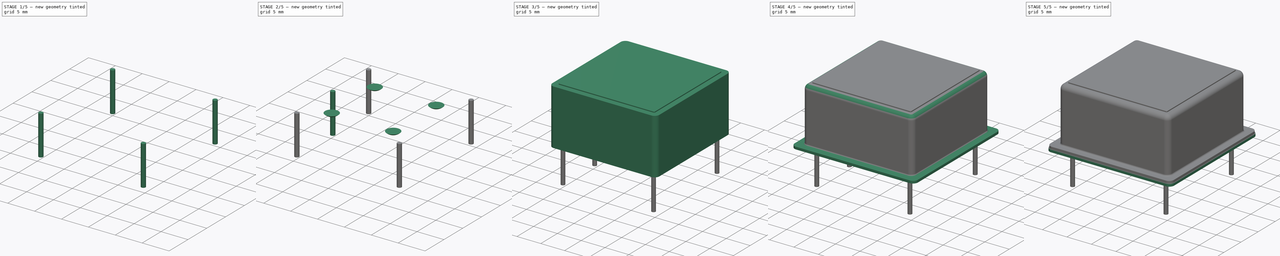
[diagram: build sequence overview — one tinted view per stage of 5, left to right]
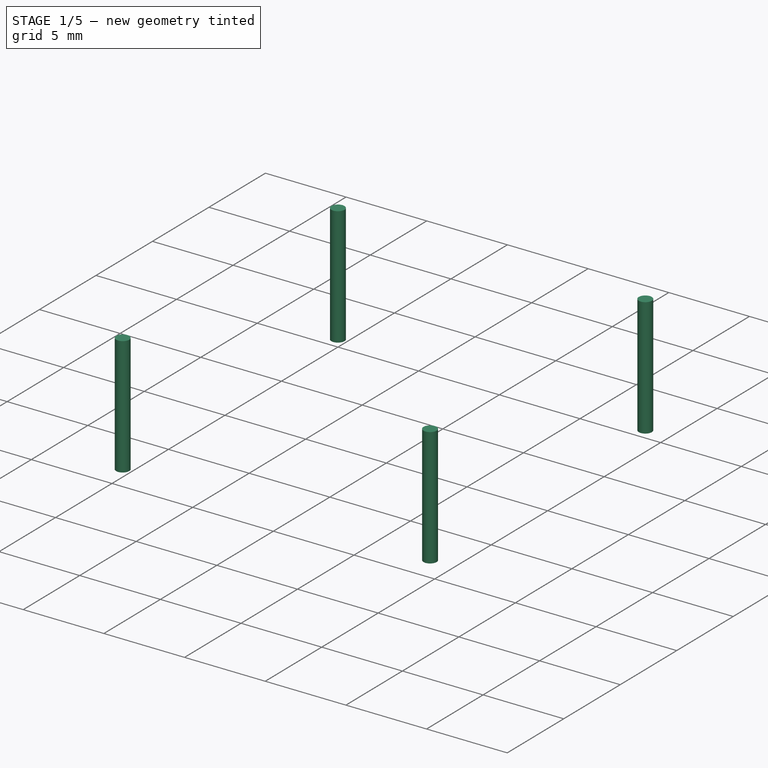
[diagram: stage 1 of 5 — iso view after this stage's code; geometry added in this stage tinted green]
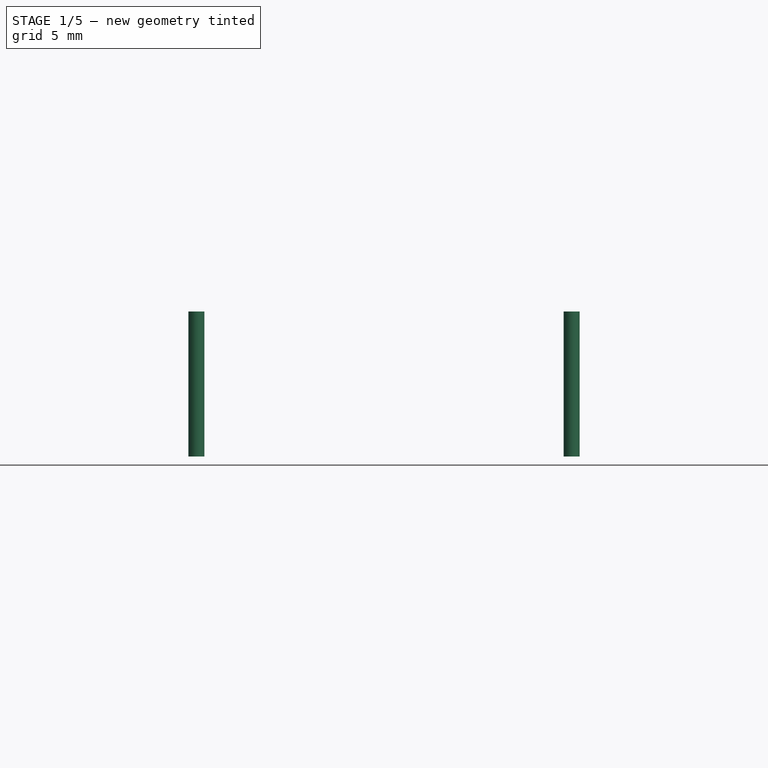
[diagram: stage 1 of 5 — front view after this stage's code; geometry added in this stage tinted green]
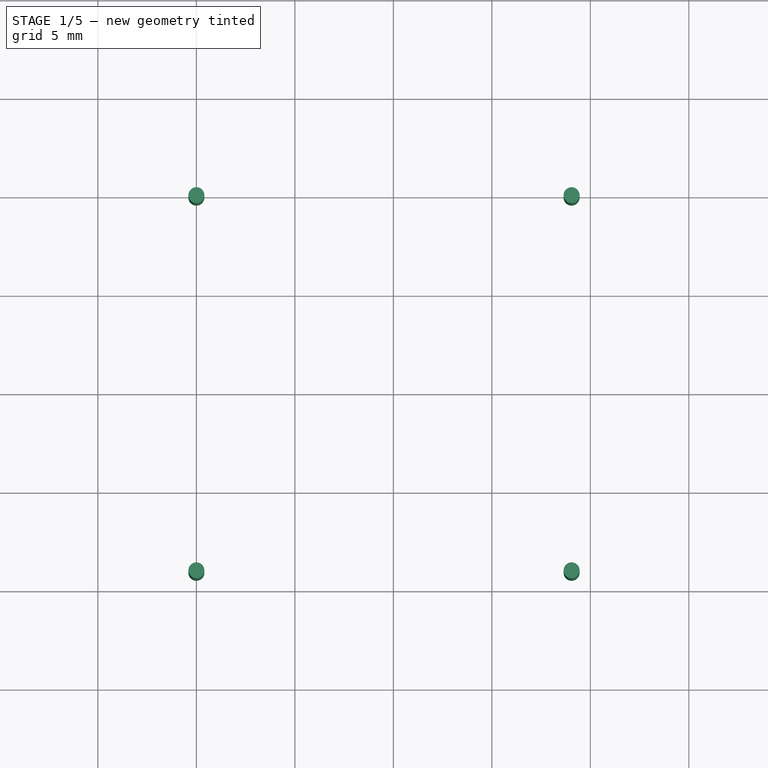
[diagram: stage 1 of 5 — top view after this stage's code; geometry added in this stage tinted green]
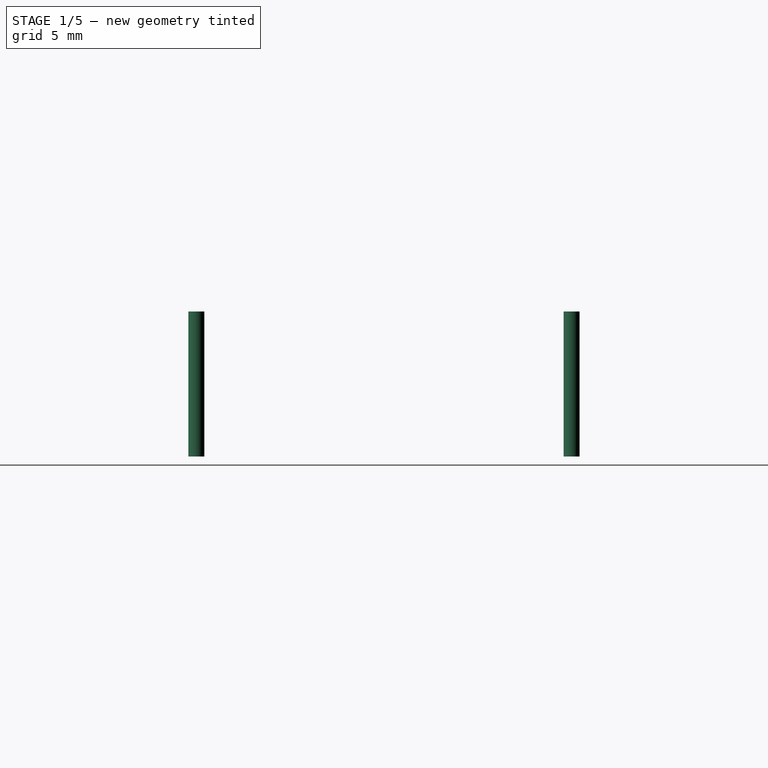
[diagram: stage 1 of 5 — right view after this stage's code; geometry added in this stage tinted green]
FCSTD DOCUMENT  (FreeCAD 1.0R38641 +468 (Git))
Label: cx205-1
License: All rights reserved
objects: Sketcher::SketchObject×7, PartDesign::Pad×6, PartDesign::Body×6, PartDesign::Plane×3, PartDesign::Line×3, PartDesign::Fillet×2, Part::FeaturePython×2, Spreadsheet::Sheet×1, PartDesign::Pocket×1, PartDesign::Thickness×1, PartDesign::Revolution×1, PartDesign::FeatureBase×1, Part::Compound×1
note: 64 computed .brp shape members not serialized (recipe doc carries the construction recipe); baked Part::Feature solids carry a one-line shape summary decoded from their .brp

FEATURE [Sketcher::SketchObject] Sketch006
  ArcFitTolerance = 0
  AttachmentSupport = -> [XY_Plane004]
  FullyConstrained = true
  MakeInternals = false
  MapMode = 5
  sketch-geometry (1):
    g0: Circle CenterX=0 CenterY=0 CenterZ=0 NormalX=0 NormalY=0 NormalZ=1 AngleXU=0 Radius=0.405
  constraints (2):
    c: Coincident(g0,g-1)
    c: Radius(g0) = 0.405
FEATURE [PartDesign::Pad] Pad005
  AllowMultiFace = false
  Direction = (0,0,1)
  Length = 1.01
  Length2 = 6.35
  Profile = -> Sketch006
  Suppressed = false
  Type = 4
FEATURE [PartDesign::Body] Body004
  AllowCompound = false
  Group = -> [Sketch006,Pad005]
  Origin = -> Origin004
  Tip = -> Pad005
FEATURE [PartDesign::FeatureBase] Clone
  BaseFeature = -> Body004
  Suppressed = false
FEATURE [PartDesign::Body] Body005
  AllowCompound = false
  Group = -> [Clone]
  Origin = -> Origin005
  Placement = pos=(0,-9.52,0) rot=(0,0,1;0rad)
  Tip = -> Clone
FEATURE [Part::FeaturePython] Array001  # Draft array (typed FeaturePython)
  Angle = 360
  ArrayType = 0
  Axis = (0,0,1)
  Base = -> Body004
  Center = (0,0,0)
  Count = 4
  Fuse = false
  IntervalAxis = (0,0,0)
  IntervalX = (19.05,0,0)
  IntervalY = (0,-19.05,0)
  IntervalZ = (0,0,100)
  NumberCircles = 3
  NumberPolar = 5
  NumberX = 2
  NumberY = 2
  NumberZ = 1
  RadialDistance = 50
  Symmetry = 1
  TangentialDistance = 25
  expr: .IntervalX.x = <<Master>>.pin_corner
  expr: .IntervalY.y = -<<Master>>.pin_corner
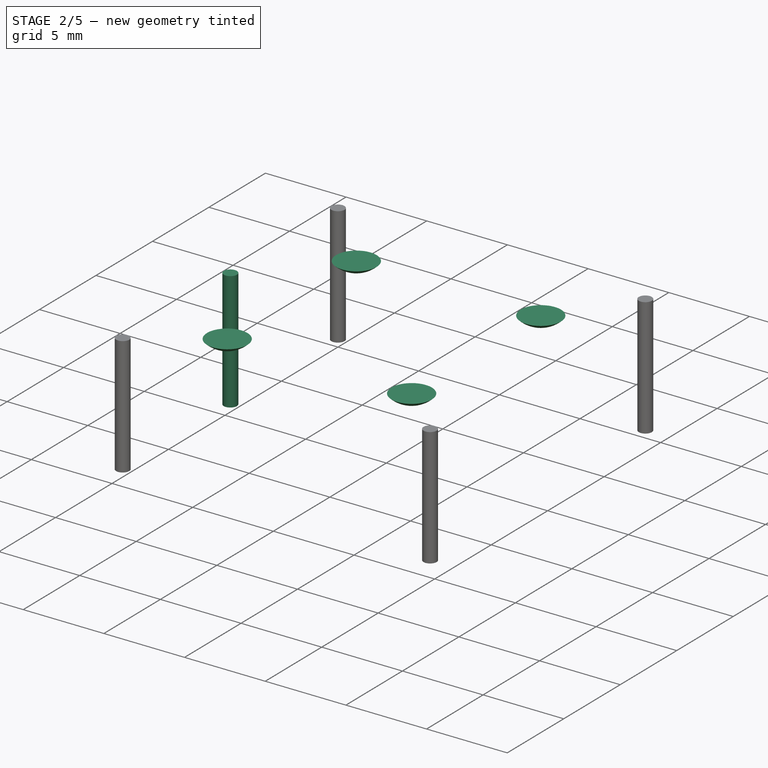
[diagram: stage 2 of 5 — iso view after this stage's code; geometry added in this stage tinted green]
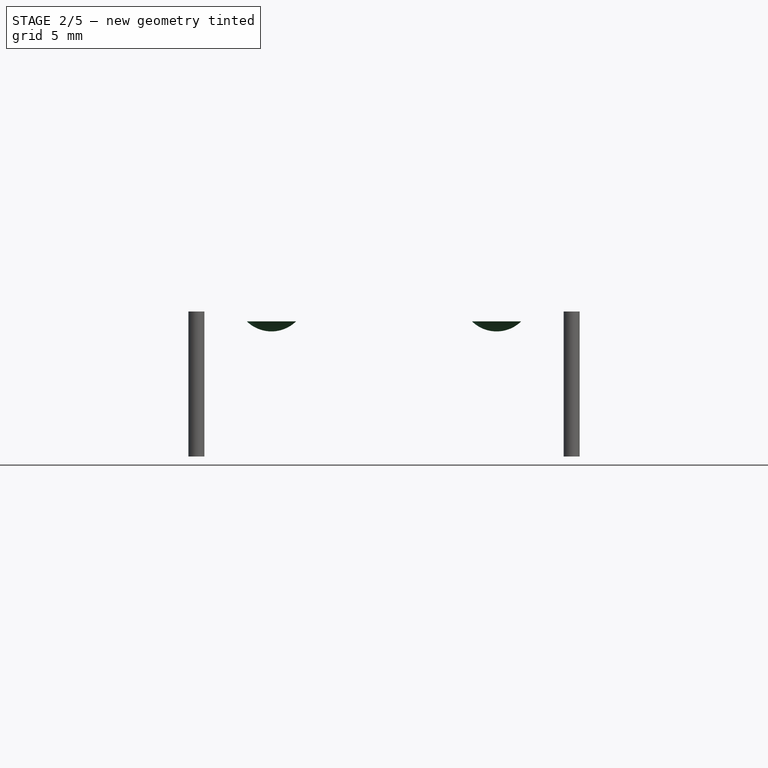
[diagram: stage 2 of 5 — front view after this stage's code; geometry added in this stage tinted green]
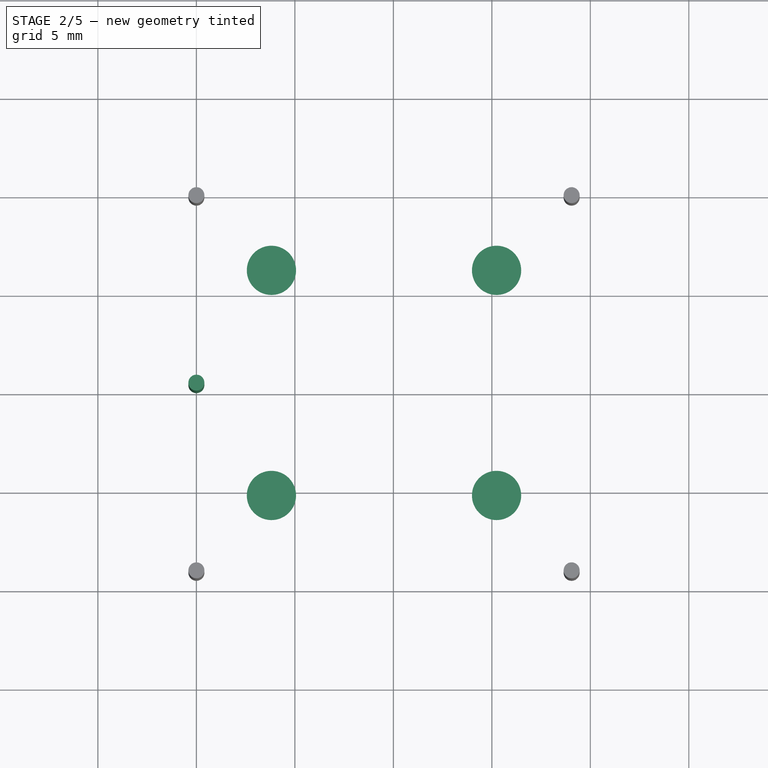
[diagram: stage 2 of 5 — top view after this stage's code; geometry added in this stage tinted green]
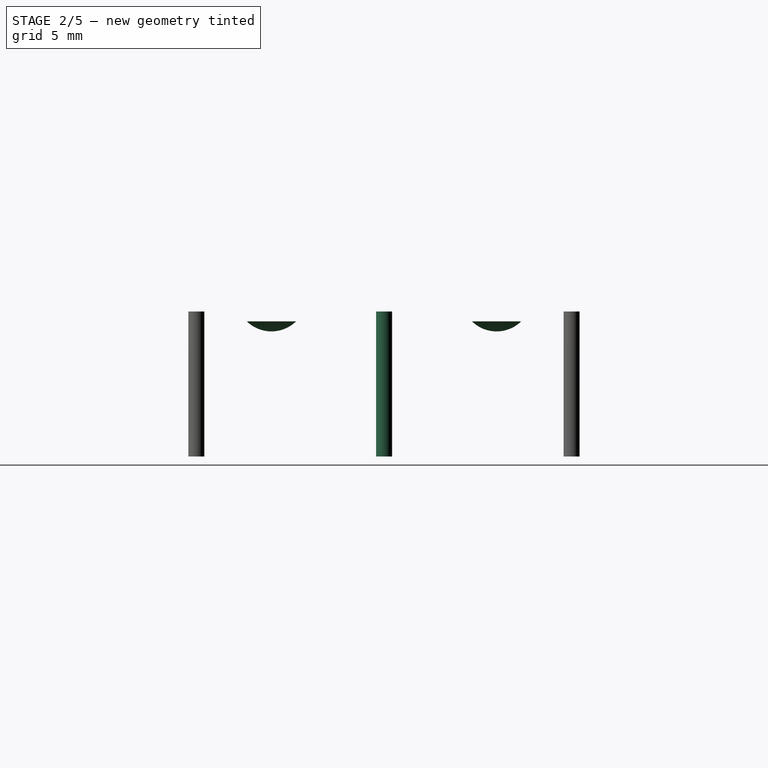
[diagram: stage 2 of 5 — right view after this stage's code; geometry added in this stage tinted green]
FEATURE [PartDesign::Body] Body002  label="Label"
  AllowCompound = false
  Group = -> [DatumLine002,DatumPlane002,Sketch004,Pad004]
  Origin = -> Origin002
  Tip = -> Pad004
FEATURE [Sketcher::SketchObject] Sketch005
  ArcFitTolerance = 0
  AttachmentSupport = -> [XZ_Plane003]
  FullyConstrained = true
  MakeInternals = false
  MapMode = 5
  Placement = pos=(0,0,0) rot=(1,0,0;1.5708rad)
  sketch-geometry (3):
    g0: LineSegment StartX=0 StartY=0.51 StartZ=0 EndX=1.25 EndY=0.51 EndZ=0
    g1: LineSegment StartX=0 StartY=0.51 StartZ=0 EndX=0 EndY=0 EndZ=0
    g2: ArcOfCircle CenterX=0 CenterY=1.78686 CenterZ=0 NormalX=0 NormalY=0 NormalZ=1 AngleXU=0 Radius=1.78686 StartAngle=4.71239 EndAngle=5.48716
  constraints (9):
    c: Horizontal(g0)
    c: Vertical(g1)
    c: Coincident(g2,g0)
    c: Coincident(g2,g1)
    c: Coincident(g1,g-1)
    c: Coincident(g1,g0)
    c: DistanceY(g1,g1) = 0.51
    c: DistanceX(g0,g0) = 1.25
    c: Perpendicular(g2,g1)
FEATURE [PartDesign::Revolution] Revolution
  AllowMultiFace = false
  Angle = 360
  Angle2 = 60
  Axis = (0,2e-16,1)
  Base = (0,0,0)
  Placement = pos=(0,0,0) rot=(1,0,0;1.5708rad)
  Profile = -> Sketch005
  ReferenceAxis = -> Sketch005 [V_Axis]
  Reversed = true
  Suppressed = false
  Type = 0
FEATURE [PartDesign::Body] Body003
  AllowCompound = false
  Group = -> [Sketch005,Revolution]
  Origin = -> Origin003
  Tip = -> Revolution
FEATURE [Part::FeaturePython] Array  label="Standoff"  # Draft array (typed FeaturePython)
  Angle = 360
  ArrayType = 0
  Axis = (0,0,1)
  Base = -> Body003
  Center = (0,0,0)
  Count = 4
  Fuse = false
  IntervalAxis = (0,0,0)
  IntervalX = (11.43,0,0)
  IntervalY = (0,-11.43,0)
  IntervalZ = (0,0,100)
  NumberCircles = 3
  NumberPolar = 5
  NumberX = 2
  NumberY = 2
  NumberZ = 1
  Placement = pos=(3.81,-3.81,0) rot=(0,0,1;0rad)
  RadialDistance = 50
  Symmetry = 1
  TangentialDistance = 25
  expr: .IntervalX.x = <<Master>>.standoff_sq
  expr: .IntervalY.y = -<<Master>>.standoff_sq
  expr: .Placement.Base.x = <<Master>>.standoff_x
  expr: .Placement.Base.y = -<<Master>>.standoff_y
FEATURE [Part::Compound] Compound  label="Pins"
  Links = -> [Array001,Body005]
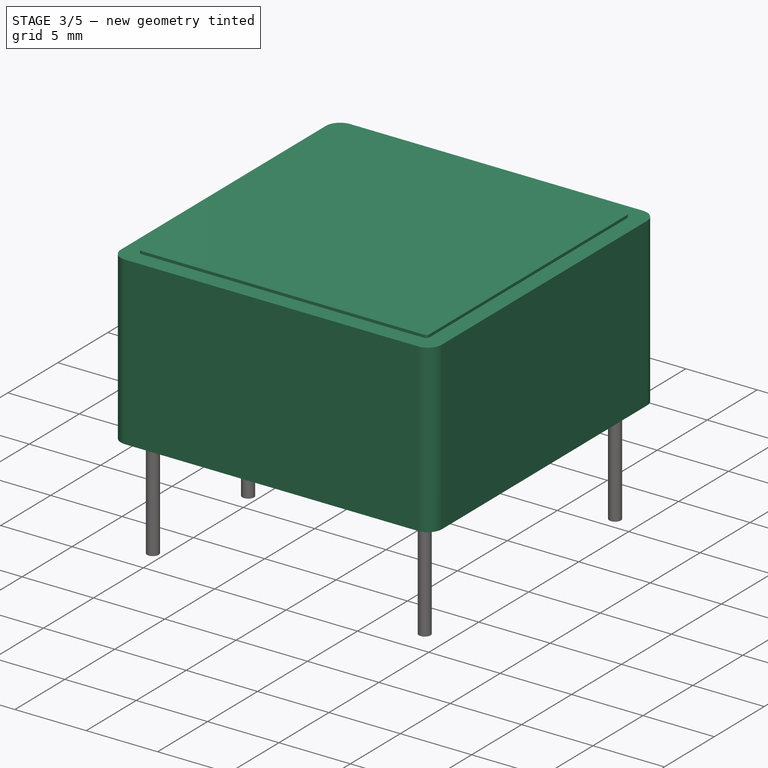
[diagram: stage 3 of 5 — iso view after this stage's code; geometry added in this stage tinted green]
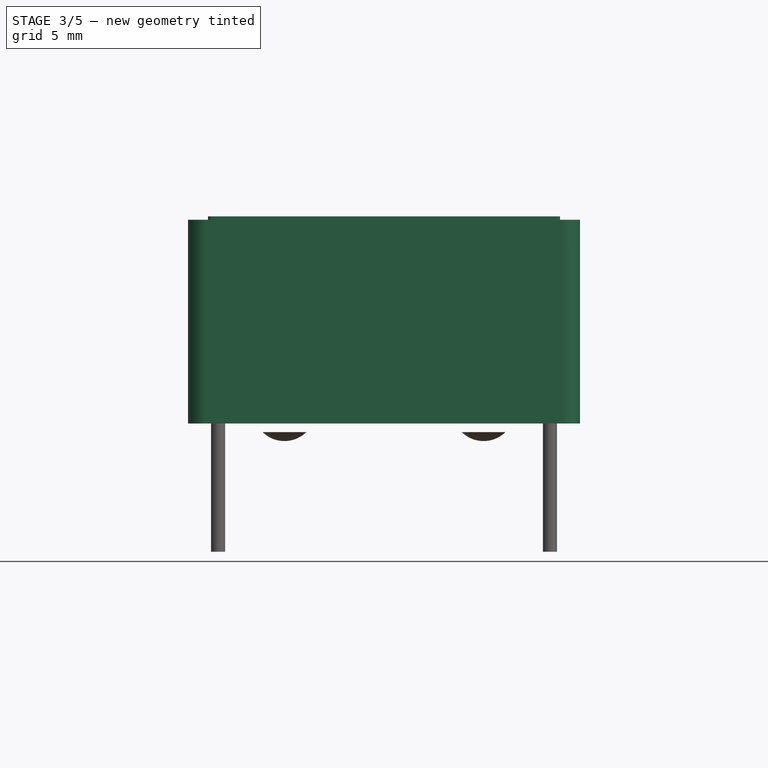
[diagram: stage 3 of 5 — front view after this stage's code; geometry added in this stage tinted green]
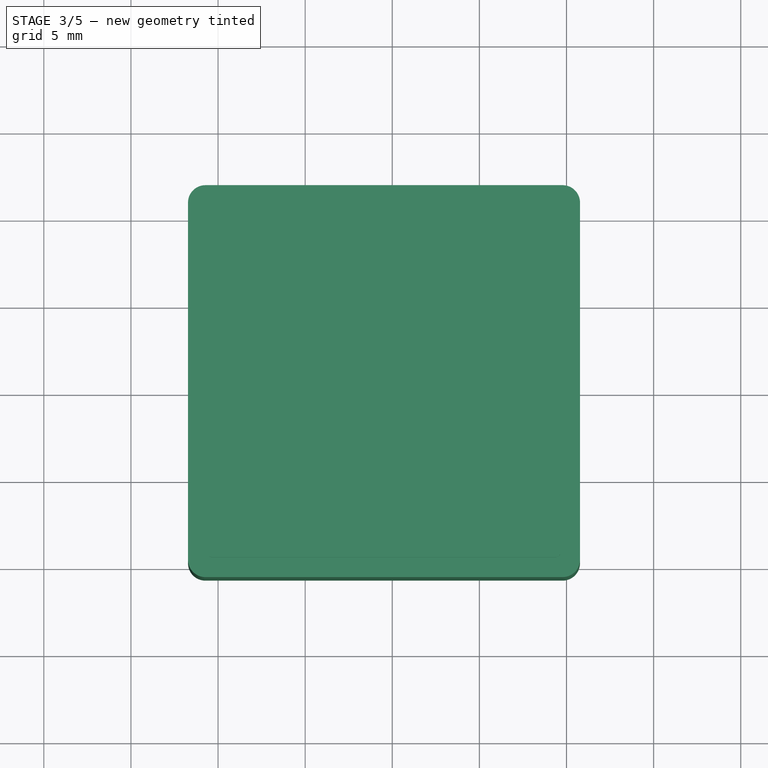
[diagram: stage 3 of 5 — top view after this stage's code; geometry added in this stage tinted green]
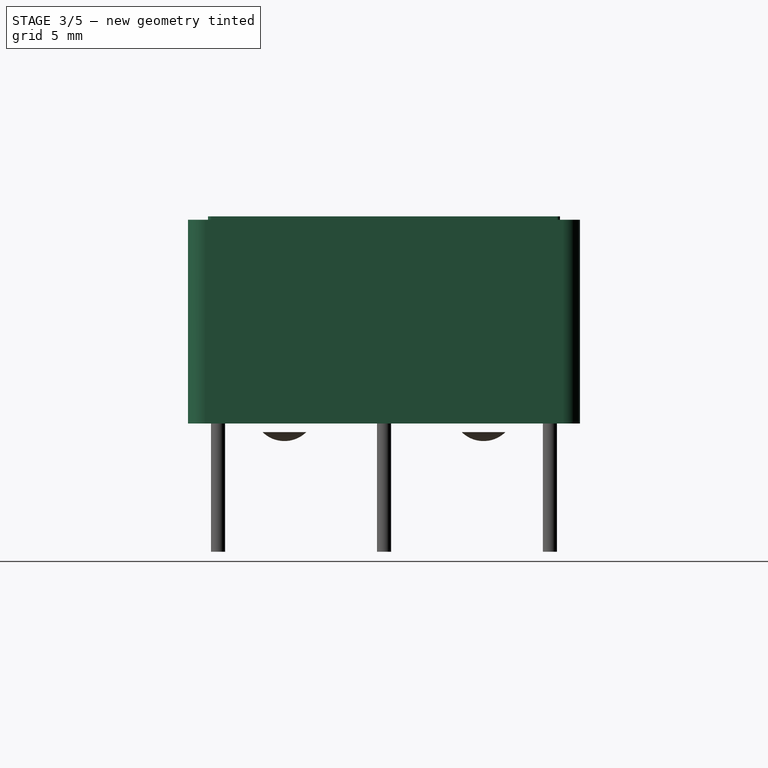
[diagram: stage 3 of 5 — right view after this stage's code; geometry added in this stage tinted green]
FEATURE [PartDesign::Body] Body  label="Base"
  AllowCompound = false
  Group = -> [DatumLine,DatumPlane,Sketch,Pad,Sketch001,Sketch002,Pad001,Pocket]
  Origin = -> Origin
  Tip = -> Pocket
FEATURE [PartDesign::Plane] DatumPlane001
  AttachmentOffset = pos=(0,0,1.01) rot=(0,0,1;0rad)
  AttachmentSupport = -> [XY_Plane001]
  Length = 60
  MapMode = 5
  Placement = pos=(0,0,1.01) rot=(0,0,1;0rad)
  ResizeMode = 0
  Width = 60
  expr: .AttachmentOffset.Base.z = <<Master>>.cover_off
FEATURE [PartDesign::Line] DatumLine001
  AttacherType = Attacher::AttachEngineLine
  AttachmentOffset = pos=(9.525,-9.525,0) rot=(0,0,1;0rad)
  AttachmentSupport = -> [Z_Axis001]
  Length = 20
  MapMode = 29
  Placement = pos=(9.525,-9.525,0) rot=(0,0,1;0rad)
  ResizeMode = 0
  expr: .AttachmentOffset.Base.x = <<Master>>.center_x
  expr: .AttachmentOffset.Base.y = -<<Master>>.center_y
FEATURE [Sketcher::SketchObject] Sketch003
  ArcFitTolerance = 0
  AttachmentSupport = -> [DatumPlane001]
  ExternalGeometry = -> [DatumLine001]
  FullyConstrained = true
  MakeInternals = false
  MapMode = 5
  Placement = pos=(0,0,1.01) rot=(0,0,1;0rad)
  expr: Constraints[29] = <<Master>>.cover_sq
  sketch-geometry (23):
    g0: LineSegment StartX=-2.075 StartY=3.075 StartZ=0 EndX=21.125 EndY=3.075 EndZ=0
    g1: LineSegment StartX=22.125 StartY=2.075 StartZ=0 EndX=22.125 EndY=-21.125 EndZ=0
    g2: LineSegment StartX=21.125 StartY=-22.125 StartZ=0 EndX=-2.075 EndY=-22.125 EndZ=0
    g3: LineSegment StartX=-3.075 StartY=-21.125 StartZ=0 EndX=-3.075 EndY=2.075 EndZ=0
    g4: LineSegment StartX=-1.725 StartY=0.725 StartZ=0 EndX=-1.725 EndY=-19.775 EndZ=0
    g5: LineSegment StartX=-0.725 StartY=-20.775 StartZ=0 EndX=19.775 EndY=-20.775 EndZ=0
    g6: LineSegment StartX=20.775 StartY=-19.775 StartZ=0 EndX=20.775 EndY=0.725 EndZ=0
    g7: LineSegment StartX=19.775 StartY=1.725 StartZ=0 EndX=-0.725 EndY=1.725 EndZ=0
    g8: ArcOfCircle CenterX=-0.725 CenterY=0.725 CenterZ=0 NormalX=0 NormalY=0 NormalZ=1 AngleXU=0 Radius=1 StartAngle=1.5708 EndAngle=3.14159
    g9: ArcOfCircle CenterX=-0.725 CenterY=-19.775 CenterZ=0 NormalX=0 NormalY=0 NormalZ=1 AngleXU=0 Radius=1 StartAngle=3.14159 EndAngle=4.71239
    g10: ArcOfCircle CenterX=19.775 CenterY=-19.775 CenterZ=0 NormalX=0 NormalY=0 NormalZ=1 AngleXU=0 Radius=1 StartAngle=4.71239 EndAngle=6.28319
    g11: ArcOfCircle CenterX=19.775 CenterY=0.725 CenterZ=0 NormalX=0 NormalY=0 NormalZ=1 AngleXU=0 Radius=1 StartAngle=0 EndAngle=1.5708
    g12: GeomPoint [constr] X=20.775 Y=-20.775 Z=0
    g13: GeomPoint [constr] X=20.775 Y=1.725 Z=0
    g14: GeomPoint [constr] X=-1.725 Y=-20.775 Z=0
    g15: ArcOfCircle CenterX=-2.075 CenterY=2.075 CenterZ=0 NormalX=0 NormalY=0 NormalZ=1 AngleXU=0 Radius=1 StartAngle=1.5708 EndAngle=3.14159
    g16: GeomPoint [constr] X=-3.075 Y=3.075 Z=0
    g17: ArcOfCircle CenterX=-2.075 CenterY=-21.125 CenterZ=0 NormalX=0 NormalY=0 NormalZ=1 AngleXU=0 Radius=1 StartAngle=3.14159 EndAngle=4.71239
    g18: GeomPoint [constr] X=-3.075 Y=-22.125 Z=0
    g19: ArcOfCircle CenterX=21.125 CenterY=-21.125 CenterZ=0 NormalX=0 NormalY=0 NormalZ=1 AngleXU=0 Radius=1 StartAngle=4.71239 EndAngle=6.28319
    g20: GeomPoint [constr] X=22.125 Y=-22.125 Z=0
    g21: ArcOfCircle CenterX=21.125 CenterY=2.075 CenterZ=0 NormalX=0 NormalY=0 NormalZ=1 AngleXU=0 Radius=1 StartAngle=-3.55e-14 EndAngle=1.5708
    g22: GeomPoint [constr] X=22.125 Y=3.075 Z=0
  constraints (52):
    c: Horizontal(g2)
    c: Vertical(g3)
    c: DistanceY(g20,g22) = 25.2
    c: Horizontal(g0)
    c: Vertical(g1)
    c: Tangent(g4,g8) = -1.5708
    c: Tangent(g4,g9) = -1.5708
    c: Tangent(g5,g9) = -1.5708
    c: Tangent(g5,g10) = -1.5708
    c: Tangent(g6,g10) = -1.5708
    c: Tangent(g6,g11) = -1.5708
    c: Tangent(g7,g11) = -1.5708
    c: Tangent(g7,g8) = -1.5708
    c: Vertical(g4)
    c: Vertical(g6)
    c: Horizontal(g5)
    c: Horizontal(g7)
    c: Equal(g8,g9)
    c: Equal(g9,g10)
    c: Equal(g10,g11)
    c: PointOnObject(g12,g5)
    c: PointOnObject(g12,g6)
    c: Radius(g8) = 1
    c: Symmetric(g22,g18,g-3)
    c: PointOnObject(g13,g7)
    c: PointOnObject(g13,g6)
    c: Equal(g6,g7)
    c: PointOnObject(g14,g5)
    c: PointOnObject(g14,g4)
    c: DistanceX(g14,g12) = 22.5
    c: Symmetric(g14,g13,g-3)
    c: PointOnObject(g16,g0)
    c: PointOnObject(g16,g3)
    c: Tangent(g0,g15) = 1.5708
    c: Tangent(g3,g15) = 1.5708
    c: PointOnObject(g18,g3)
    c: PointOnObject(g18,g2)
    c: Tangent(g3,g17) = 1.5708
    c: Tangent(g2,g17) = 1.5708
    c: PointOnObject(g20,g2)
    c: PointOnObject(g20,g1)
    c: Tangent(g2,g19) = 1.5708
    c: Tangent(g1,g19) = 1.5708
    c: PointOnObject(g22,g0)
    c: PointOnObject(g22,g1)
    c: Tangent(g0,g21) = 1.5708
    c: Tangent(g1,g21) = 1.5708
    c: Equal(g21,g15)
    c: Equal(g15,g17)
    c: Equal(g17,g19)
    c: Radius(g15) = 1
    c: Equal(g1,g0)
FEATURE [PartDesign::Pad] Pad002
  Direction = (0,0,1)
  Length = 11.69
  Length2 = 10
  Placement = pos=(0,0,1.01) rot=(0,0,1;0rad)
  Profile = -> Sketch003 [Edge9,Edge16,Edge15,Edge14,Edge13,Edge12,Edge11,Edge10]
  ReferenceAxis = -> Sketch003 [N_Axis]
  Suppressed = false
  Type = 0
  expr: Length = <<Master>>.cover_h
FEATURE [PartDesign::Thickness] Thickness
  Base = -> Pad002 [Face9]
  BaseFeature = -> Pad002
  Intersection = false
  Join = 0
  Mode = 0
  Reversed = true
  SupportTransform = false
  Suppressed = false
  Value = 0.5
  expr: Value = <<Master>>.thick
FEATURE [PartDesign::Body] Body001  label="Cover"
  AllowCompound = false
  Group = -> [DatumLine001,DatumPlane001,Sketch003,Pad002,Thickness,Pad003,Fillet,Fillet001]
  Origin = -> Origin001
  Tip = -> Fillet001
FEATURE [PartDesign::Plane] DatumPlane002
  AttachmentOffset = pos=(0,0,12.7) rot=(0,0,1;0rad)
  AttachmentSupport = -> [XY_Plane002]
  Length = 60
  MapMode = 5
  Placement = pos=(0,0,12.7) rot=(0,0,1;0rad)
  ResizeMode = 0
  Width = 60
  expr: .AttachmentOffset.Base.z = <<Master>>.height
FEATURE [PartDesign::Line] DatumLine002
  AttacherType = Attacher::AttachEngineLine
  AttachmentOffset = pos=(9.525,-9.525,0) rot=(0,0,1;0rad)
  AttachmentSupport = -> [Z_Axis002]
  Length = 20
  MapMode = 29
  Placement = pos=(9.525,-9.525,0) rot=(0,0,1;0rad)
  ResizeMode = 0
  expr: .AttachmentOffset.Base.x = <<Master>>.center_x
  expr: .AttachmentOffset.Base.y = -<<Master>>.center_y
FEATURE [Sketcher::SketchObject] Sketch004
  ArcFitTolerance = 0
  AttachmentSupport = -> [DatumPlane002]
  ExternalGeometry = -> [DatumLine002]
  FullyConstrained = true
  MakeInternals = false
  MapMode = 5
  Placement = pos=(0,0,12.7) rot=(0,0,1;0rad)
  sketch-geometry (12):
    g0: LineSegment StartX=-0.375 StartY=0.575 StartZ=0 EndX=19.425 EndY=0.575 EndZ=0
    g1: LineSegment StartX=19.625 StartY=0.375 StartZ=0 EndX=19.625 EndY=-19.425 EndZ=0
    g2: LineSegment StartX=19.425 StartY=-19.625 StartZ=0 EndX=-0.375 EndY=-19.625 EndZ=0
    g3: LineSegment StartX=-0.575 StartY=-19.425 StartZ=0 EndX=-0.575 EndY=0.375 EndZ=0
    g4: ArcOfCircle CenterX=-0.375 CenterY=0.375 CenterZ=0 NormalX=0 NormalY=0 NormalZ=1 AngleXU=0 Radius=0.2 StartAngle=1.5708 EndAngle=3.14159
    g5: GeomPoint [constr] X=-0.575 Y=0.575 Z=0
    g6: ArcOfCircle CenterX=19.425 CenterY=0.375 CenterZ=0 NormalX=0 NormalY=0 NormalZ=1 AngleXU=0 Radius=0.2 StartAngle=-8.9e-15 EndAngle=1.5708
    g7: GeomPoint [constr] X=19.625 Y=0.575 Z=0
    g8: ArcOfCircle CenterX=19.425 CenterY=-19.425 CenterZ=0 NormalX=0 NormalY=0 NormalZ=1 AngleXU=0 Radius=0.2 StartAngle=4.71239 EndAngle=6.28319
    g9: GeomPoint [constr] X=19.625 Y=-19.625 Z=0
    g10: ArcOfCircle CenterX=-0.375 CenterY=-19.425 CenterZ=0 NormalX=0 NormalY=0 NormalZ=1 AngleXU=0 Radius=0.2 StartAngle=3.14159 EndAngle=4.71239
    g11: GeomPoint [constr] X=-0.575 Y=-19.625 Z=0
  constraints (27):
    c: Horizontal(g2)
    c: Vertical(g3)
    c: DistanceY(g9,g7) = 20.2
    c: Horizontal(g0)
    c: Vertical(g1)
    c: Symmetric(g7,g11,g-3)
    c: PointOnObject(g5,g0)
    c: PointOnObject(g5,g3)
    c: Tangent(g0,g4) = 1.5708
    c: Tangent(g3,g4) = 1.5708
    c: PointOnObject(g7,g1)
    c: PointOnObject(g7,g0)
    c: Tangent(g1,g6) = 1.5708
    c: Tangent(g0,g6) = 1.5708
    c: PointOnObject(g9,g2)
    c: PointOnObject(g9,g1)
    c: Tangent(g2,g8) = 1.5708
    c: Tangent(g1,g8) = 1.5708
    c: PointOnObject(g11,g3)
    c: PointOnObject(g11,g2)
    c: Tangent(g3,g10) = 1.5708
    c: Tangent(g2,g10) = 1.5708
    c: Equal(g0,g1)
    c: Equal(g4,g6)
    c: Equal(g6,g8)
    c: Equal(g8,g10)
    c: Radius(g6) = 0.2
FEATURE [PartDesign::Pad] Pad004
  AllowMultiFace = false
  Direction = (0,0,1)
  Length = 0.2
  Length2 = 100
  Placement = pos=(0,0,12.7) rot=(0,0,1;0rad)
  Profile = -> Sketch004
  Suppressed = false
  Type = 0
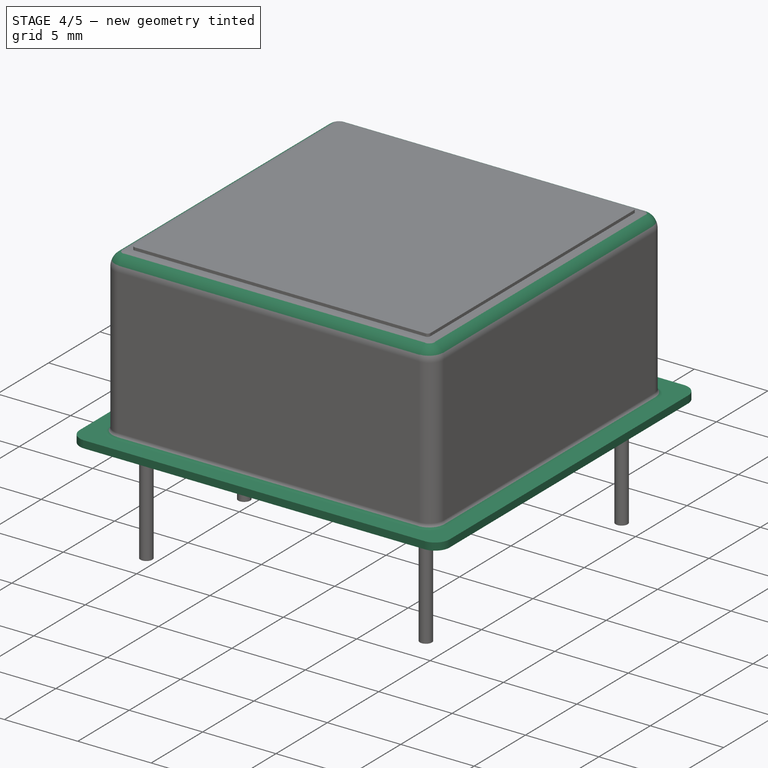
[diagram: stage 4 of 5 — iso view after this stage's code; geometry added in this stage tinted green]
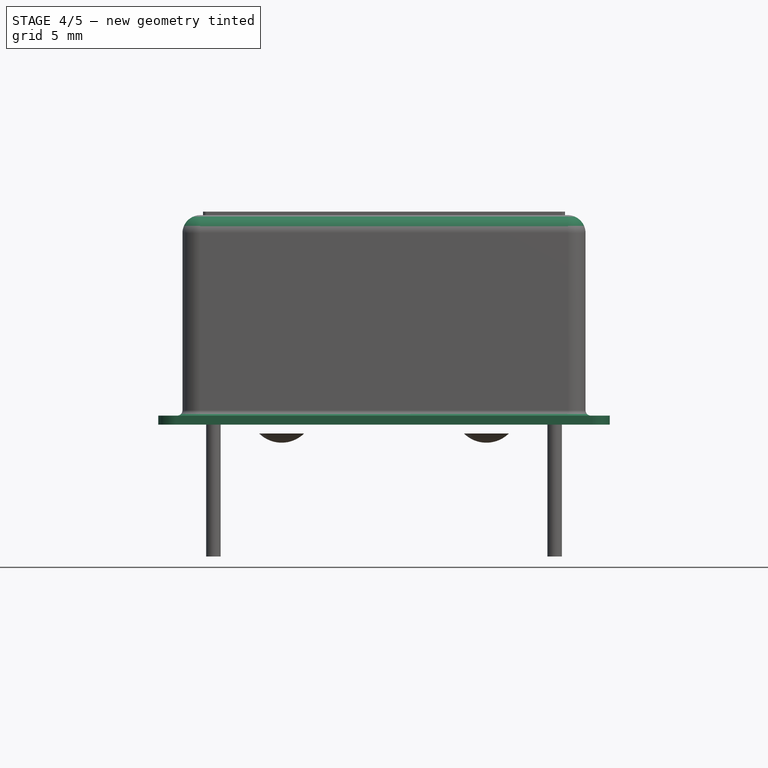
[diagram: stage 4 of 5 — front view after this stage's code; geometry added in this stage tinted green]
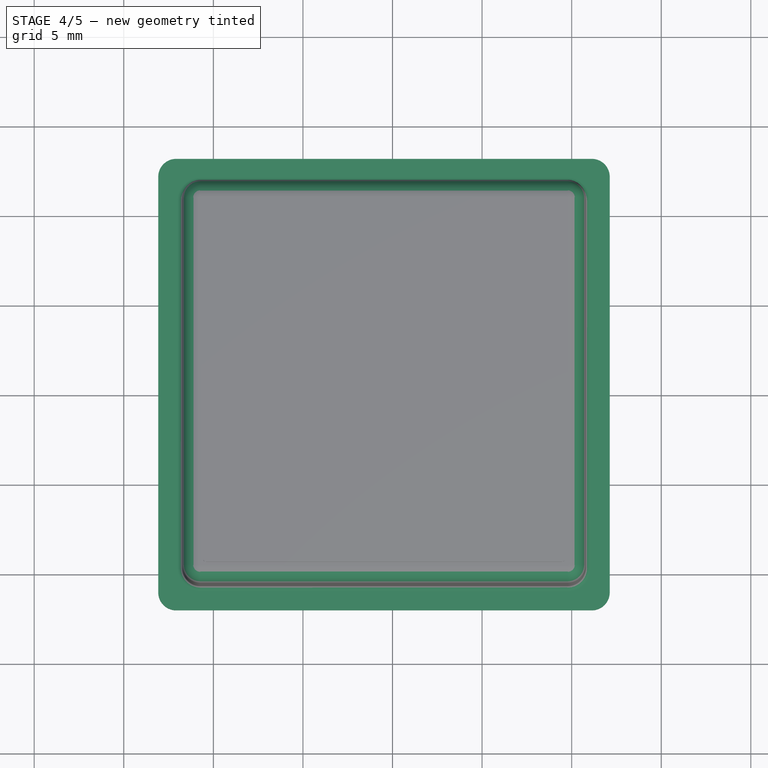
[diagram: stage 4 of 5 — top view after this stage's code; geometry added in this stage tinted green]
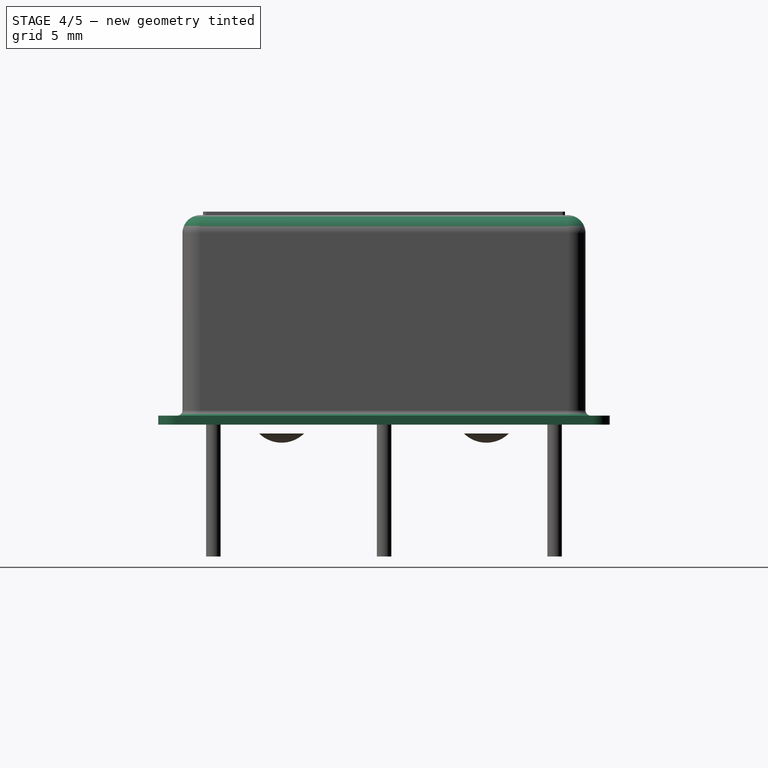
[diagram: stage 4 of 5 — right view after this stage's code; geometry added in this stage tinted green]
FEATURE [PartDesign::Pad] Pad003
  BaseFeature = -> Thickness
  Direction = (0,0,1)
  Length = 0.5
  Length2 = 10
  Profile = -> Sketch003
  ReferenceAxis = -> Sketch003 [N_Axis]
  Refine = true
  Suppressed = false
  Type = 0
  expr: Length = <<Master>>.thick
FEATURE [PartDesign::Fillet] Fillet
  Base = -> Pad003 [Edge22]
  BaseFeature = -> Pad003
  Radius = 1
  SupportTransform = false
  Suppressed = false
  UseAllEdges = false
FEATURE [PartDesign::Fillet] Fillet001
  Base = -> Fillet [Edge19]
  BaseFeature = -> Fillet
  Radius = 0.3
  SupportTransform = false
  Suppressed = false
  UseAllEdges = false
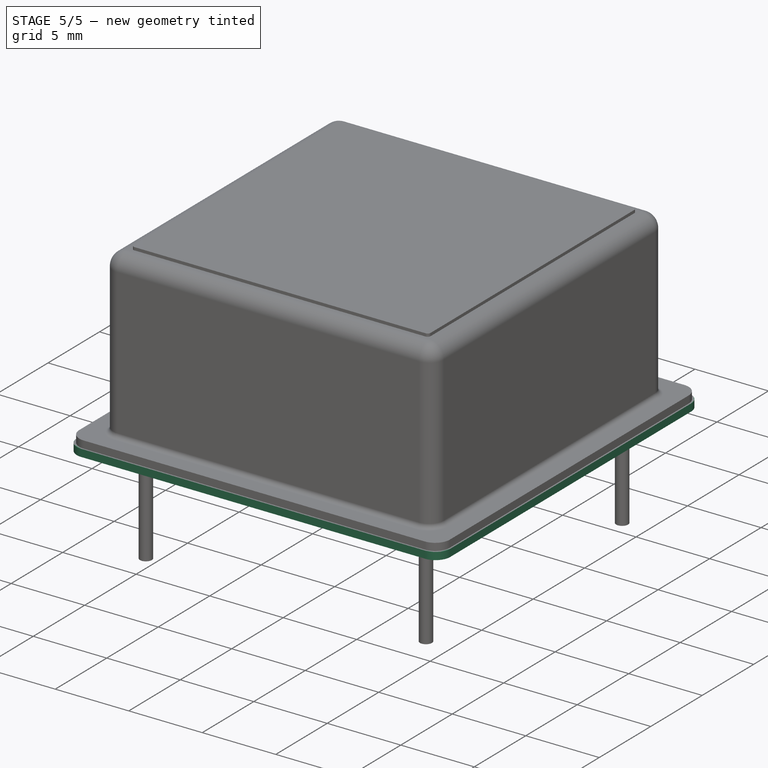
[diagram: stage 5 of 5 — iso view after this stage's code; geometry added in this stage tinted green]
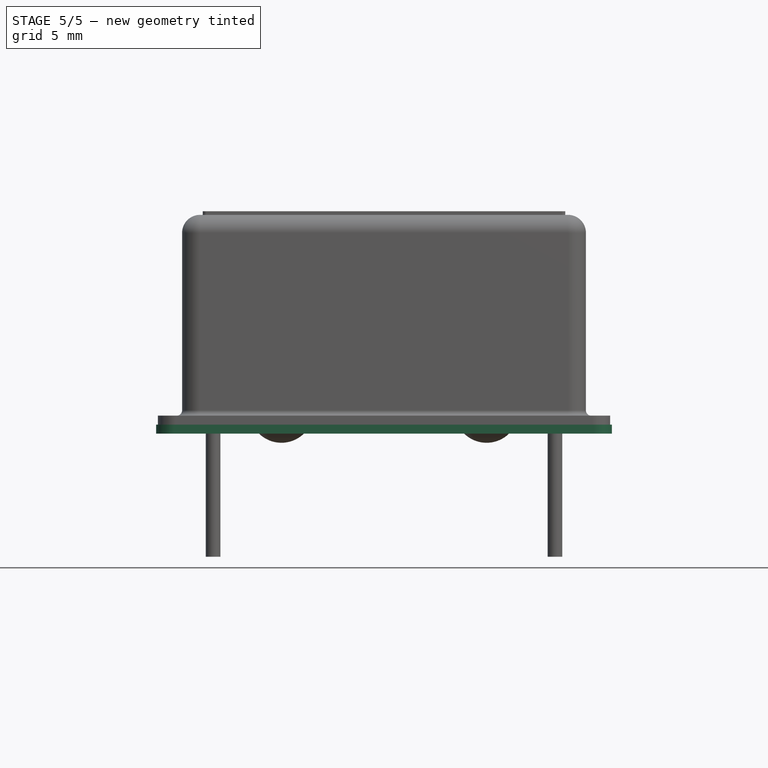
[diagram: stage 5 of 5 — front view after this stage's code; geometry added in this stage tinted green]
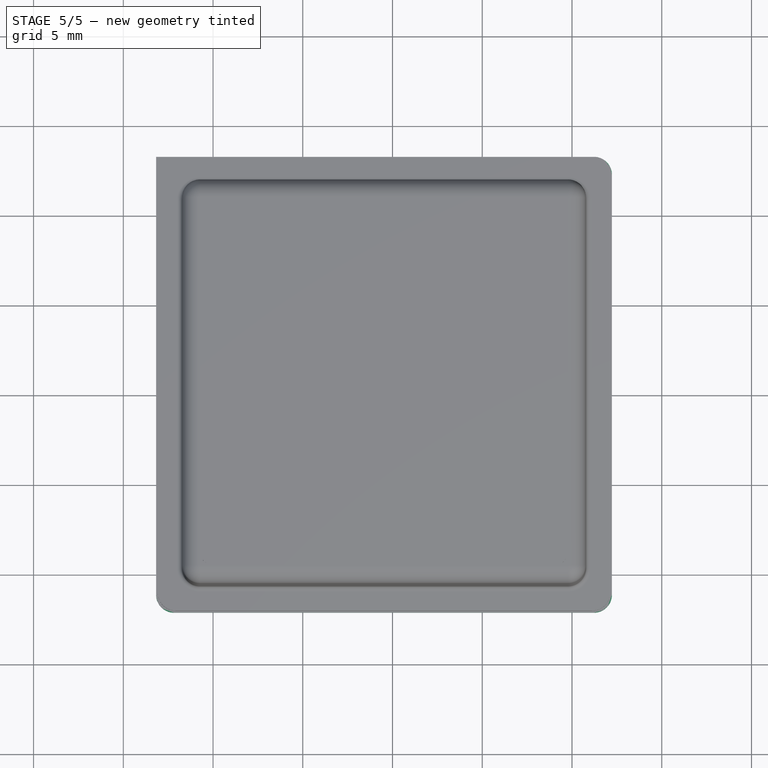
[diagram: stage 5 of 5 — top view after this stage's code; geometry added in this stage tinted green]
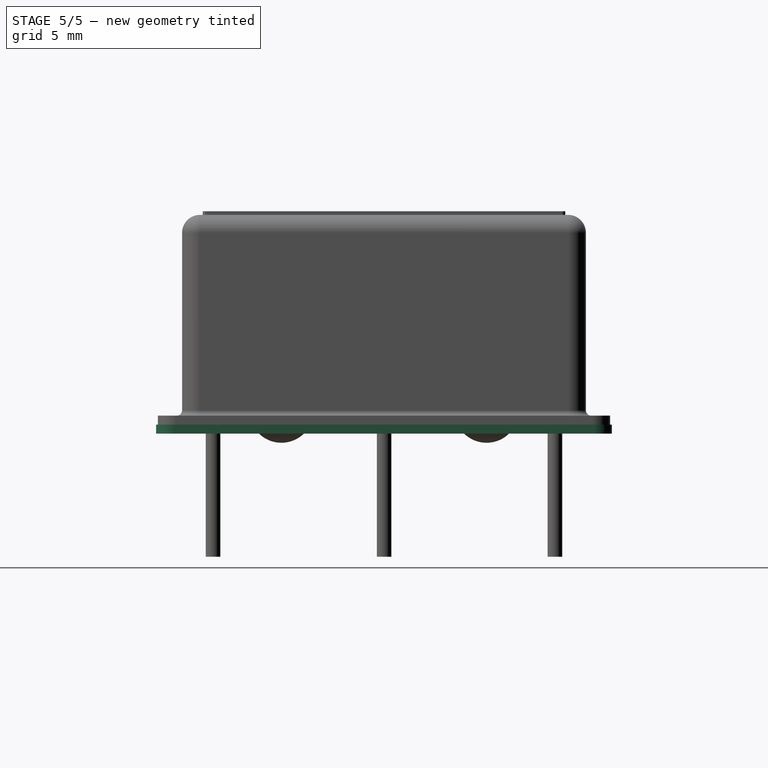
[diagram: stage 5 of 5 — right view after this stage's code; geometry added in this stage tinted green]
FEATURE [Spreadsheet::Sheet] Spreadsheet  label="Master"
  cells = A1='Constants; A2='base sq; B2(base_sq)==25.4 mm; D2='Base square size; A3='height; B3(height)==12.7 mm; D3='Total height; A4='thick; B4(thick)==0.5 mm; D4='Metal work thickness'; A5='pin corner; B5(pin_corner)==19.05 mm; D5='Pin corner square dimensions; A6='cover sq; B6(cover_sq)==22.5 mm; D6='Cover square size; A7='cover offset; B7(cover_off)==1.01 mm; D7='Bottom of cover; A8='standoff sq; B8(standoff_sq)==11.43 mm; D8='Standoff square; A10='Calculated; A11='center; B11(center_x)==pin_corner / 2; C11(center_y)==pin_corner / 2; D11='Center offset x/y; A12='cover height; B12(cover_h)==height - cover_off; D12='Height of cover; A13='standoff offset; B13(standoff_x)==(pin_corner - standoff_sq) / 2; C13(standoff_y)==(pin_corner - standoff_sq) / 2; D13='Corner offset of the standoff square
FEATURE [PartDesign::Plane] DatumPlane
  AttachmentOffset = pos=(0,0,0.51) rot=(0,0,1;0rad)
  AttachmentSupport = -> [XY_Plane]
  Length = 60
  MapMode = 5
  Placement = pos=(0,0,0.51) rot=(0,0,1;0rad)
  ResizeMode = 0
  Width = 60
FEATURE [PartDesign::Line] DatumLine
  AttacherType = Attacher::AttachEngineLine
  AttachmentOffset = pos=(9.525,-9.525,0) rot=(0,0,1;0rad)
  AttachmentSupport = -> [Z_Axis]
  Length = 20
  MapMode = 29
  Placement = pos=(9.525,-9.525,0) rot=(0,0,1;0rad)
  ResizeMode = 0
  expr: .AttachmentOffset.Base.x = <<Master>>.center_x
  expr: .AttachmentOffset.Base.y = -<<Master>>.center_y
FEATURE [Sketcher::SketchObject] Sketch
  ArcFitTolerance = 0
  AttachmentSupport = -> [DatumPlane]
  ExternalGeometry = -> [DatumLine]
  FullyConstrained = true
  MakeInternals = false
  MapMode = 5
  Placement = pos=(0,0,0.51) rot=(0,0,1;0rad)
  expr: Constraints[21] = <<Master>>.base_sq
  expr: Constraints[22] = <<Master>>.base_sq
  sketch-geometry (10):
    g0: LineSegment StartX=-3.175 StartY=3.175 StartZ=0 EndX=21.225 EndY=3.175 EndZ=0
    g1: LineSegment StartX=22.225 StartY=2.175 StartZ=0 EndX=22.225 EndY=-21.225 EndZ=0
    g2: LineSegment StartX=21.225 StartY=-22.225 StartZ=0 EndX=-2.175 EndY=-22.225 EndZ=0
    g3: LineSegment StartX=-3.175 StartY=-21.225 StartZ=0 EndX=-3.175 EndY=3.175 EndZ=0
    g4: ArcOfCircle CenterX=21.225 CenterY=2.175 CenterZ=0 NormalX=0 NormalY=0 NormalZ=1 AngleXU=0 Radius=1 StartAngle=0 EndAngle=1.5708
    g5: GeomPoint [constr] X=22.225 Y=3.175 Z=0
    g6: ArcOfCircle CenterX=21.225 CenterY=-21.225 CenterZ=0 NormalX=0 NormalY=0 NormalZ=1 AngleXU=0 Radius=1 StartAngle=4.71239 EndAngle=6.28319
    g7: GeomPoint [constr] X=22.225 Y=-22.225 Z=0
    g8: ArcOfCircle CenterX=-2.175 CenterY=-21.225 CenterZ=0 NormalX=0 NormalY=0 NormalZ=1 AngleXU=0 Radius=1 StartAngle=3.14159 EndAngle=4.71239
    g9: GeomPoint [constr] X=-3.175 Y=-22.225 Z=0
  constraints (23):
    c: Coincident(g3,g0)
    c: Horizontal(g2)
    c: Vertical(g3)
    c: Horizontal(g0)
    c: Vertical(g1)
    c: Symmetric(g9,g5,g-3)
    c: PointOnObject(g5,g0)
    c: PointOnObject(g5,g1)
    c: Tangent(g0,g4) = 1.5708
    c: Tangent(g1,g4) = 1.5708
    c: PointOnObject(g7,g1)
    c: PointOnObject(g7,g2)
    c: Tangent(g1,g6) = 1.5708
    c: Tangent(g2,g6) = 1.5708
    c: PointOnObject(g9,g2)
    c: PointOnObject(g9,g3)
    c: Tangent(g2,g8) = 1.5708
    c: Tangent(g3,g8) = 1.5708
    c: Equal(g8,g6)
    c: Equal(g6,g4)
    c: Radius(g8) = 1
    c: DistanceY(g9,g0) = 25.4
    c: DistanceX(g0,g5) = 25.4
FEATURE [PartDesign::Pad] Pad
  AllowMultiFace = false
  Direction = (0,0,1)
  Length = 0.5
  Length2 = 100
  Placement = pos=(0,0,0.51) rot=(0,0,1;0rad)
  Profile = -> Sketch
  Suppressed = false
  Type = 0
  expr: Length = <<Master>>.thick
FEATURE [Sketcher::SketchObject] Sketch001
  ArcFitTolerance = 0
  AttachmentSupport = -> [DatumPlane]
  ExternalGeometry = -> [DatumLine]
  FullyConstrained = true
  MakeInternals = false
  MapMode = 5
  Placement = pos=(0,0,0.51) rot=(0,0,1;0rad)
  expr: Constraints[9] = <<Master>>.pin_corner
  sketch-geometry (10):
    g0: Circle CenterX=3.6e-15 CenterY=0 CenterZ=0 NormalX=0 NormalY=0 NormalZ=1 AngleXU=0 Radius=1
    g1: Circle CenterX=3.6e-15 CenterY=-19.05 CenterZ=0 NormalX=0 NormalY=0 NormalZ=1 AngleXU=0 Radius=1
    g2: Circle CenterX=3.6e-15 CenterY=-9.525 CenterZ=0 NormalX=0 NormalY=0 NormalZ=1 AngleXU=0 Radius=1
    g3: Circle CenterX=19.05 CenterY=-19.05 CenterZ=0 NormalX=0 NormalY=0 NormalZ=1 AngleXU=0 Radius=1
    g4: Circle CenterX=19.05 CenterY=0 CenterZ=0 NormalX=0 NormalY=0 NormalZ=1 AngleXU=0 Radius=1
    g5: LineSegment [constr] StartX=19.05 StartY=-19.05 StartZ=0 EndX=19.05 EndY=0 EndZ=0
    g6: LineSegment [constr] StartX=19.05 StartY=0 StartZ=0 EndX=3.6e-15 EndY=0 EndZ=0
    g7: LineSegment [constr] StartX=3.6e-15 StartY=-19.05 StartZ=0 EndX=19.05 EndY=-19.05 EndZ=0
    g8: LineSegment [constr] StartX=3.6e-15 StartY=-9.525 StartZ=0 EndX=3.6e-15 EndY=0 EndZ=0
    g9: LineSegment [constr] StartX=3.6e-15 StartY=-9.525 StartZ=0 EndX=3.6e-15 EndY=-19.05 EndZ=0
  constraints (24):
    c: Equal(g0,g1)
    c: Equal(g1,g2)
    c: Equal(g2,g3)
    c: Equal(g3,g4)
    c: Coincident(g5,g3)
    c: Coincident(g5,g4)
    c: Coincident(g6,g4)
    c: Coincident(g6,g0)
    c: Equal(g5,g6)
    c: DistanceY(g5,g5) = 19.05
    c: Radius(g4) = 1
    c: Vertical(g5)
    c: Horizontal(g6)
    c: Coincident(g7,g1)
    c: Coincident(g7,g3)
    c: Horizontal(g7)
    c: Coincident(g8,g2)
    c: Coincident(g8,g0)
    c: Vertical(g8)
    c: Coincident(g9,g2)
    c: Coincident(g9,g1)
    c: Vertical(g9)
    c: Equal(g9,g8)
    c: Symmetric(g4,g1,g-3)
FEATURE [Sketcher::SketchObject] Sketch002
  ArcFitTolerance = 1e-06
  AttachmentSupport = -> [DatumPlane]
  ExternalGeometry = -> [DatumLine]
  FullyConstrained = true
  MakeInternals = false
  MapMode = 5
  Placement = pos=(0,0,0.51) rot=(0,0,1;0rad)
  expr: Constraints[23] = <<Master>>.cover_sq - 1 mm
  expr: Constraints[24] = <<Master>>.cover_sq - 1 mm
  sketch-geometry (11):
    g0: LineSegment StartX=-1.225 StartY=0.725 StartZ=0 EndX=-1.225 EndY=-19.775 EndZ=0
    g1: LineSegment StartX=-0.725 StartY=-20.275 StartZ=0 EndX=19.775 EndY=-20.275 EndZ=0
    g2: LineSegment StartX=20.275 StartY=-19.775 StartZ=0 EndX=20.275 EndY=0.725 EndZ=0
    g3: LineSegment StartX=19.775 StartY=1.225 StartZ=0 EndX=-0.725 EndY=1.225 EndZ=0
    g4: ArcOfCircle CenterX=-0.725 CenterY=0.725 CenterZ=0 NormalX=0 NormalY=0 NormalZ=1 AngleXU=0 Radius=0.5 StartAngle=1.5708 EndAngle=3.14159
    g5: ArcOfCircle CenterX=-0.725 CenterY=-19.775 CenterZ=0 NormalX=0 NormalY=0 NormalZ=1 AngleXU=0 Radius=0.5 StartAngle=3.14159 EndAngle=4.71239
    g6: ArcOfCircle CenterX=19.775 CenterY=-19.775 CenterZ=0 NormalX=0 NormalY=0 NormalZ=1 AngleXU=0 Radius=0.5 StartAngle=4.71239 EndAngle=6.28319
    g7: ArcOfCircle CenterX=19.775 CenterY=0.725 CenterZ=0 NormalX=0 NormalY=0 NormalZ=1 AngleXU=0 Radius=0.5 StartAngle=1e-16 EndAngle=1.5708
    g8: GeomPoint [constr] X=-1.225 Y=-20.275 Z=0
    g9: GeomPoint [constr] X=20.275 Y=1.225 Z=0
    g10: GeomPoint [constr] X=20.275 Y=-20.275 Z=0
  constraints (25):
    c: Tangent(g0,g4) = -1.5708
    c: Tangent(g0,g5) = -1.5708
    c: Tangent(g1,g5) = -1.5708
    c: Tangent(g1,g6) = -1.5708
    c: Tangent(g2,g6) = -1.5708
    c: Tangent(g2,g7) = -1.5708
    c: Tangent(g3,g7) = -1.5708
    c: Tangent(g3,g4) = -1.5708
    c: Vertical(g0)
    c: Vertical(g2)
    c: Horizontal(g1)
    c: Horizontal(g3)
    c: Equal(g4,g5)
    c: Equal(g5,g6)
    c: Equal(g5,g7)
    c: PointOnObject(g8,g0)
    c: PointOnObject(g8,g1)
    c: PointOnObject(g9,g3)
    c: PointOnObject(g9,g2)
    c: Symmetric(g8,g9,g-3)
    c: PointOnObject(g10,g1)
    c: PointOnObject(g10,g2)
    c: Radius(g4) = 0.5
    c: DistanceX(g8,g10) = 21.5
    c: DistanceY(g10,g9) = 21.5
FEATURE [PartDesign::Pad] Pad001
  BaseFeature = -> Pad
  Direction = (0,0,1)
  Length = 1
  Length2 = 10
  Placement = pos=(0,0,0.51) rot=(0,0,1;0rad)
  Profile = -> Sketch002
  ReferenceAxis = -> Sketch002 [N_Axis]
  Suppressed = false
  Type = 0
FEATURE [PartDesign::Pocket] Pocket
  AllowMultiFace = false
  BaseFeature = -> Pad001
  Direction = (0,0,-1)
  Length = 0.5
  Length2 = 100
  Placement = pos=(0,0,0.51) rot=(0,0,1;0rad)
  Profile = -> Sketch001
  ReferenceAxis = -> Sketch001 [N_Axis]
  Refine = true
  Reversed = true
  Suppressed = false
  Type = 0
  expr: Length = <<Master>>.thick
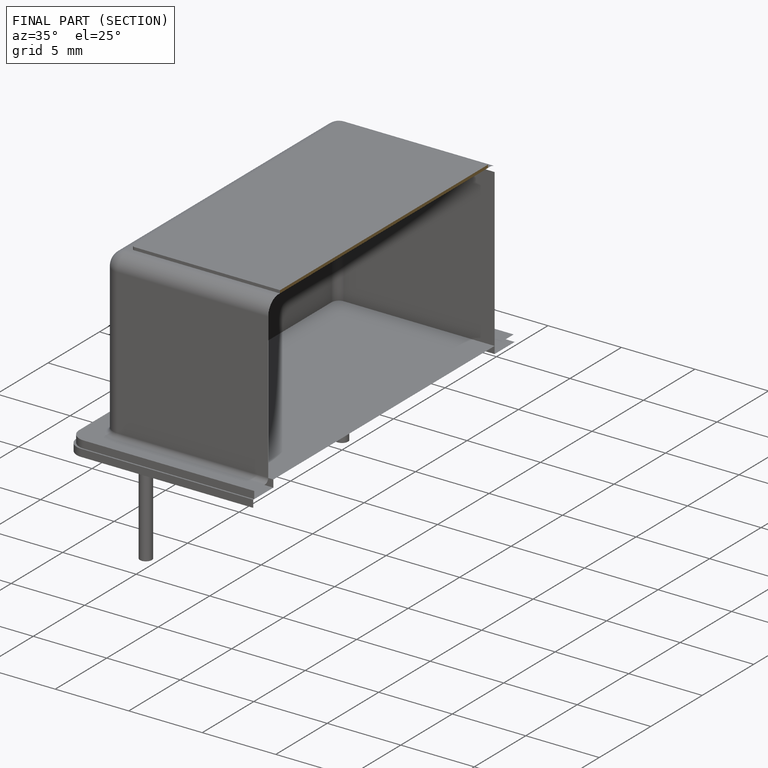
[diagram: finished part — half-section view (interior)]
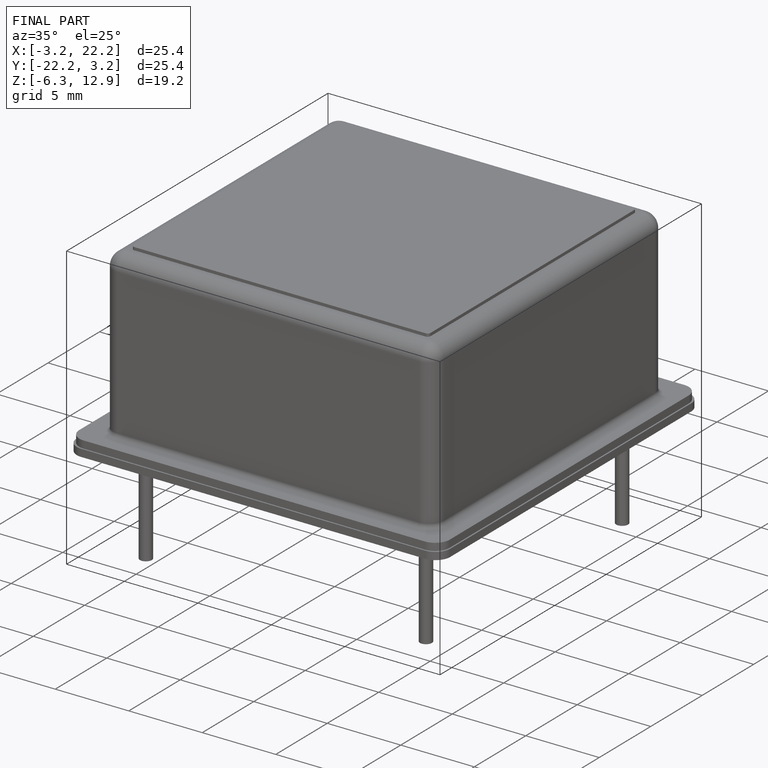
[diagram: finished part — iso view with bounding-box wireframe]
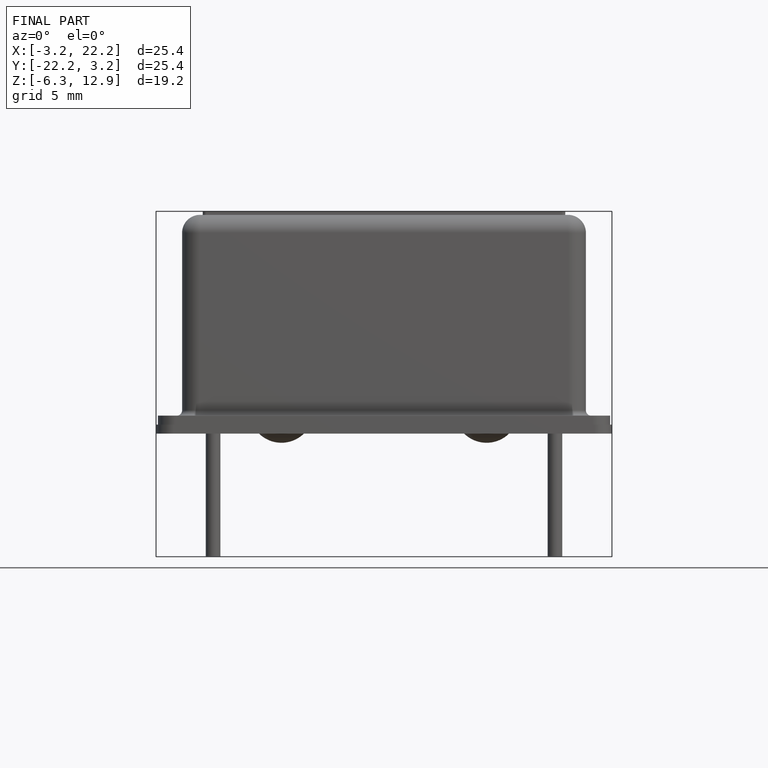
[diagram: finished part — front view with bounding-box wireframe]
